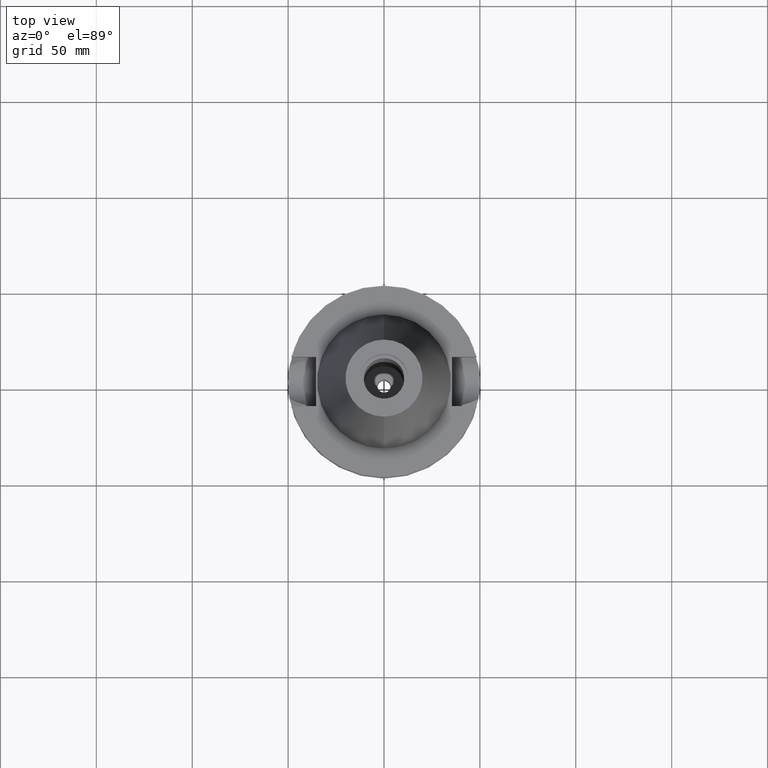
[diagram: clean part render]
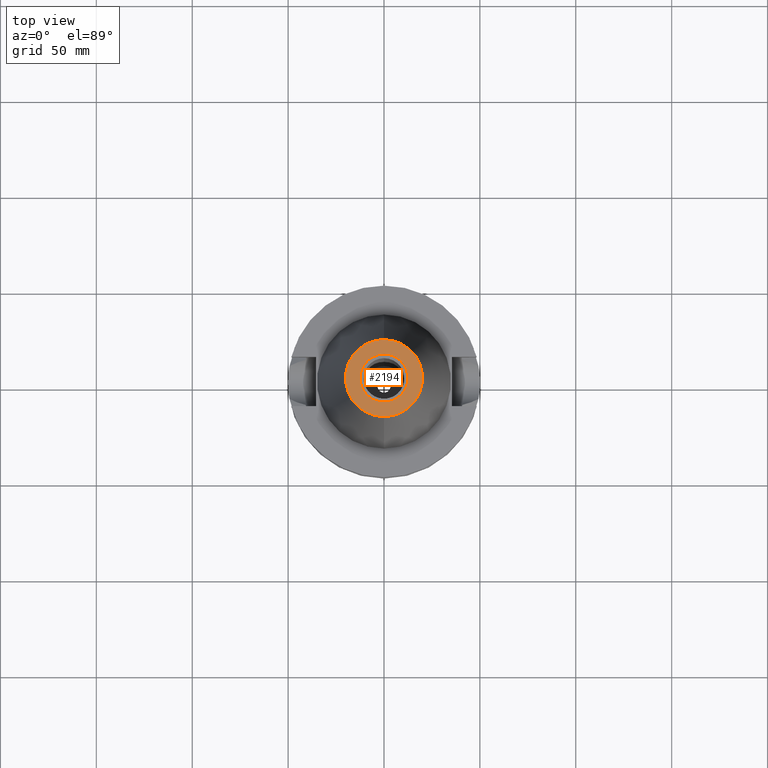
[diagram: same view with one face highlighted and labeled with its STEP entity id]
A machine part, top view. The second image highlights one B-rep face of the part: STEP entity #2194.
In plain terms, the highlighted planar face has unit normal (0, 0, -1).
Its self-contained STEP definition (entity closure, byte-faithful):
#1093=CARTESIAN_POINT('',(0.E0,1.847992019913E-14,1.018E2));
#1094=DIRECTION('',(0.E0,0.E0,-1.E0));
#1095=DIRECTION('',(0.E0,-1.E0,0.E0));
#1096=AXIS2_PLACEMENT_3D('',#1093,#1094,#1095);
#1101=CARTESIAN_POINT('',(0.E0,1.847992019913E-14,1.018E2));
#1102=DIRECTION('',(0.E0,0.E0,-1.E0));
#1103=DIRECTION('',(0.E0,1.E0,0.E0));
#1104=AXIS2_PLACEMENT_3D('',#1101,#1102,#1103);
#1109=CARTESIAN_POINT('',(0.E0,2.688222188808E-14,1.018E2));
#1110=DIRECTION('',(0.E0,0.E0,1.E0));
#1111=DIRECTION('',(0.E0,-1.E0,0.E0));
#1112=AXIS2_PLACEMENT_3D('',#1109,#1110,#1111);
#1117=CARTESIAN_POINT('',(0.E0,2.688222188808E-14,1.018E2));
#1118=DIRECTION('',(0.E0,0.E0,1.E0));
#1119=DIRECTION('',(0.E0,1.E0,0.E0));
#1120=AXIS2_PLACEMENT_3D('',#1117,#1118,#1119);
#1126=CARTESIAN_POINT('',(0.E0,1.25E1,1.018E2));
#1128=VERTEX_POINT('',#1126);
#1129=CARTESIAN_POINT('',(0.E0,-1.25E1,1.018E2));
#1130=VERTEX_POINT('',#1129);
#1286=CARTESIAN_POINT('',(0.E0,2.007942971896E1,1.018E2));
#1287=VERTEX_POINT('',#1286);
#1288=CARTESIAN_POINT('',(0.E0,-2.007942971896E1,1.018E2));
#1289=VERTEX_POINT('',#1288);
#2181=CARTESIAN_POINT('',(0.E0,2.471337240679E-14,1.018E2));
#2182=DIRECTION('',(0.E0,0.E0,-1.E0));
#2183=DIRECTION('',(0.E0,-1.E0,0.E0));
#2184=AXIS2_PLACEMENT_3D('',#2181,#2182,#2183);
#2185=PLANE('',#2184);
#2186=ORIENTED_EDGE('',*,*,#2160,.T.);
#2187=ORIENTED_EDGE('',*,*,#2176,.T.);
#2188=EDGE_LOOP('',(#2186,#2187));
#2189=FACE_OUTER_BOUND('',#2188,.F.);
#2190=ORIENTED_EDGE('',*,*,#1305,.T.);
#2191=ORIENTED_EDGE('',*,*,#1323,.T.);
#2192=EDGE_LOOP('',(#2190,#2191));
#2193=FACE_BOUND('',#2192,.F.);
#1097=CIRCLE('',#1096,2.007942971896E1);
#1105=CIRCLE('',#1104,2.007942971896E1);
#1113=CIRCLE('',#1112,1.25E1);
#1121=CIRCLE('',#1120,1.25E1);
#1305=EDGE_CURVE('',#1130,#1128,#1113,.T.);
#1323=EDGE_CURVE('',#1128,#1130,#1121,.T.);
#2160=EDGE_CURVE('',#1289,#1287,#1097,.T.);
#2176=EDGE_CURVE('',#1287,#1289,#1105,.T.);
#2194=ADVANCED_FACE('',(#2189,#2193),#2185,.F.);